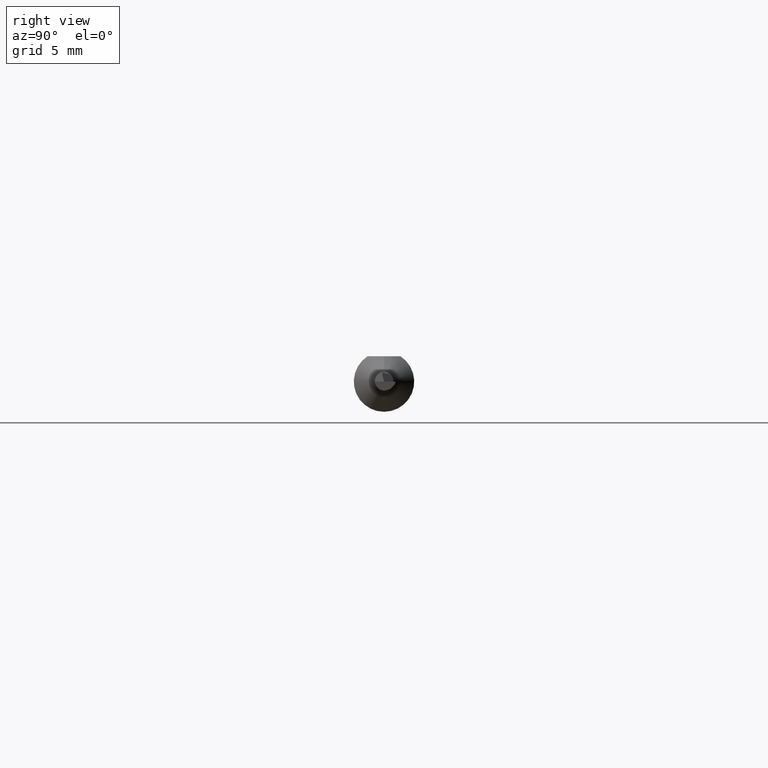
[diagram: clean part render]
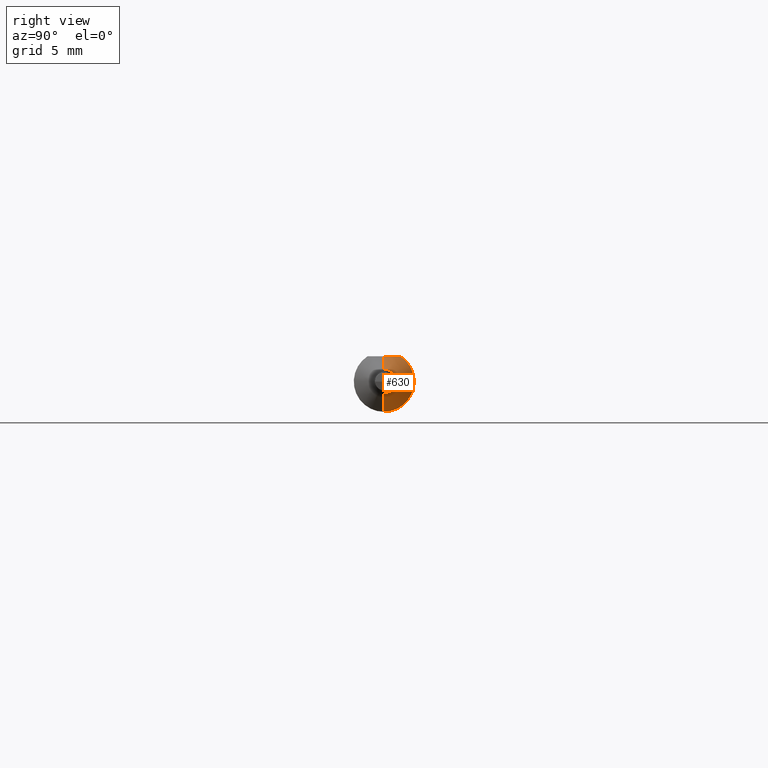
[diagram: same view with one face highlighted and labeled with its STEP entity id]
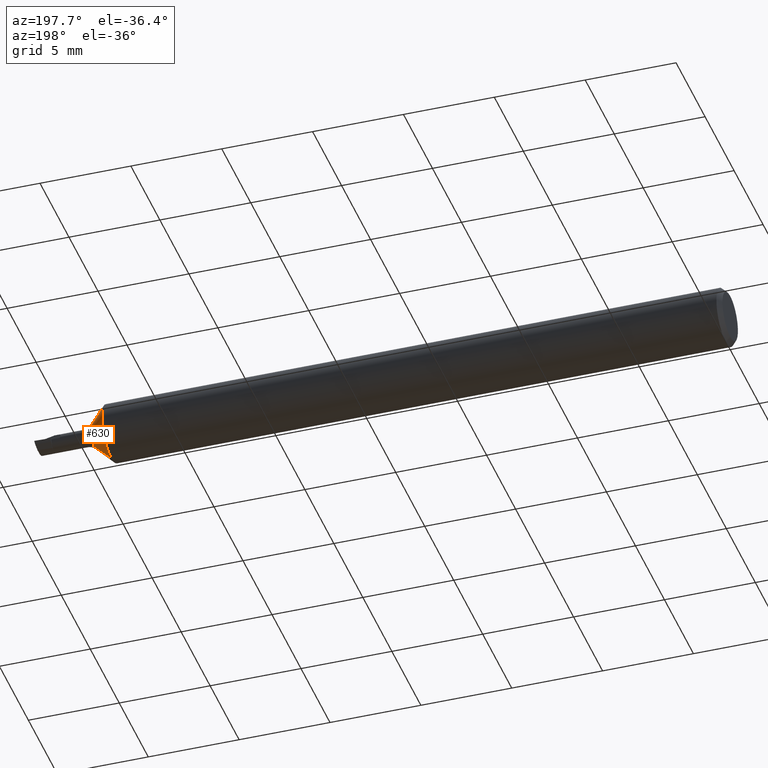
[diagram: same view with one face highlighted and labeled with its STEP entity id]
A machine part, right view. The second image highlights one B-rep face of the part: STEP entity #630.
A second angle (auxiliary view) of the same face is appended — the face is thin or edge-on in the first view.
In plain terms, the highlighted conical surface has half-angle 45 deg.
Its self-contained STEP definition (entity closure, byte-faithful):
#17 = ORIENTED_EDGE ( 'NONE', *, *, #109, .F. ) ;
#26 = EDGE_CURVE ( 'NONE', #545, #393, #606, .T. ) ;
#40 = EDGE_CURVE ( 'NONE', #224, #44, #548, .T. ) ;
#44 = VERTEX_POINT ( 'NONE', #354 ) ;
#45 = AXIS2_PLACEMENT_3D ( 'NONE', #531, #424, #622 ) ;
#48 = CARTESIAN_POINT ( 'NONE',  ( 1.377677669529663751, 0.000000000000000000, 0.000000000000000000 ) ) ;
#55 = CARTESIAN_POINT ( 'NONE',  ( 1.351150000000000073, -1.477724559795570125E-21, 0.05235000000000001458 ) ) ;
#81 = CARTESIAN_POINT ( 'NONE',  ( 1.346488788636946765, 0.02320328458619742157, 0.05235000000000002152 ) ) ;
#82 = EDGE_LOOP ( 'NONE', ( #507, #213, #17, #596, #372 ) ) ;
#84 = CARTESIAN_POINT ( 'NONE',  ( 1.377677669529663751, 0.000000000000000000, 0.02582233047033637152 ) ) ;
#88 = AXIS2_PLACEMENT_3D ( 'NONE', #566, #131, #266 ) ;
#89 = CARTESIAN_POINT ( 'NONE',  ( 1.341150000000000286, 0.03386738844375220686, 0.05235000000000000070 ) ) ;
#97 = CARTESIAN_POINT ( 'NONE',  ( 1.351150000000000073, -1.477724559795570125E-21, 0.05235000000000001458 ) ) ;
#109 = EDGE_CURVE ( 'NONE', #327, #44, #415, .T. ) ;
#131 = DIRECTION ( 'NONE',  ( -1.000000000000000000, -0.000000000000000000, -0.000000000000000000 ) ) ;
#158 = DIRECTION ( 'NONE',  ( -0.7071067811865457964, 8.659560562354953812E-17, -0.7071067811865492381 ) ) ;
#166 = CARTESIAN_POINT ( 'NONE',  ( 1.377677669529663751, 3.162323435702260084E-18, -0.02582233047033637152 ) ) ;
#196 = AXIS2_PLACEMENT_3D ( 'NONE', #48, #379, #544 ) ;
#207 = VECTOR ( 'NONE', #345, 39.37007874015748143 ) ;
#213 = ORIENTED_EDGE ( 'NONE', *, *, #40, .T. ) ;
#224 = VERTEX_POINT ( 'NONE', #166 ) ;
#266 = DIRECTION ( 'NONE',  ( 0.000000000000000000, 0.000000000000000000, 1.000000000000000000 ) ) ;
#281 = EDGE_CURVE ( 'NONE', #327, #393, #607, .T. ) ;
#285 = VECTOR ( 'NONE', #158, 39.37007874015748143 ) ;
#298 = CARTESIAN_POINT ( 'NONE',  ( 1.377677669529663751, 3.162323435702260854E-18, -0.02582233047033637499 ) ) ;
#323 = EDGE_CURVE ( 'NONE', #545, #224, #570, .T. ) ;
#327 = VERTEX_POINT ( 'NONE', #89 ) ;
#345 = DIRECTION ( 'NONE',  ( -0.7071067811865457964, 0.000000000000000000, 0.7071067811865492381 ) ) ;
#354 = CARTESIAN_POINT ( 'NONE',  ( 1.341150000000000286, 7.635672792683746671E-18, -0.06235000000000000264 ) ) ;
#372 = ORIENTED_EDGE ( 'NONE', *, *, #26, .F. ) ;
#379 = DIRECTION ( 'NONE',  ( -1.000000000000000000, -0.000000000000000000, -0.000000000000000000 ) ) ;
#380 = CARTESIAN_POINT ( 'NONE',  ( 1.351150000000000073, 0.005920815533600997868, 0.05235000000000002152 ) ) ;
#384 = CARTESIAN_POINT ( 'NONE',  ( 1.350078615661969073, 0.01191463382135339415, 0.05235000000000001458 ) ) ;
#393 = VERTEX_POINT ( 'NONE', #55 ) ;
#415 = CIRCLE ( 'NONE', #88, 0.06235000000000000264 ) ;
#424 = DIRECTION ( 'NONE',  ( -1.000000000000000000, -0.000000000000000000, -0.000000000000000000 ) ) ;
#496 = CARTESIAN_POINT ( 'NONE',  ( 1.377677669529663751, 0.000000000000000000, 0.02582233047033637499 ) ) ;
#507 = ORIENTED_EDGE ( 'NONE', *, *, #323, .T. ) ;
#531 = CARTESIAN_POINT ( 'NONE',  ( 1.377677669529663751, 0.000000000000000000, 0.000000000000000000 ) ) ;
#539 = CARTESIAN_POINT ( 'NONE',  ( 1.343992034642578215, 0.02863519109676607513, 0.05235000000000002152 ) ) ;
#544 = DIRECTION ( 'NONE',  ( 0.000000000000000000, 0.000000000000000000, 1.000000000000000000 ) ) ;
#545 = VERTEX_POINT ( 'NONE', #84 ) ;
#548 = LINE ( 'NONE', #298, #285 ) ;
#566 = CARTESIAN_POINT ( 'NONE',  ( 1.341150000000000286, 0.000000000000000000, 0.000000000000000000 ) ) ;
#570 = CIRCLE ( 'NONE', #45, 0.02582233047033637499 ) ;
#585 = FACE_OUTER_BOUND ( 'NONE', #82, .T. ) ;
#596 = ORIENTED_EDGE ( 'NONE', *, *, #281, .T. ) ;
#604 = CONICAL_SURFACE ( 'NONE', #196, 0.02582233047033637499, 0.7853981633974507215 ) ;
#606 = LINE ( 'NONE', #496, #207 ) ;
#607 = B_SPLINE_CURVE_WITH_KNOTS ( 'NONE', 3,
 ( #629, #539, #81, #384, #380, #97 ),
 .UNSPECIFIED., .F., .F.,
 ( 4, 2, 4 ),
 ( 0.002018861167849301565, 0.002467762199066080540, 0.002916663230282859516 ),
 .UNSPECIFIED. ) ;
#622 = DIRECTION ( 'NONE',  ( 0.000000000000000000, 0.000000000000000000, 1.000000000000000000 ) ) ;
#629 = CARTESIAN_POINT ( 'NONE',  ( 1.341150000000000286, 0.03386738844375220686, 0.05235000000000000070 ) ) ;
#630 = ADVANCED_FACE ( 'NONE', ( #585 ), #604, .T. ) ;